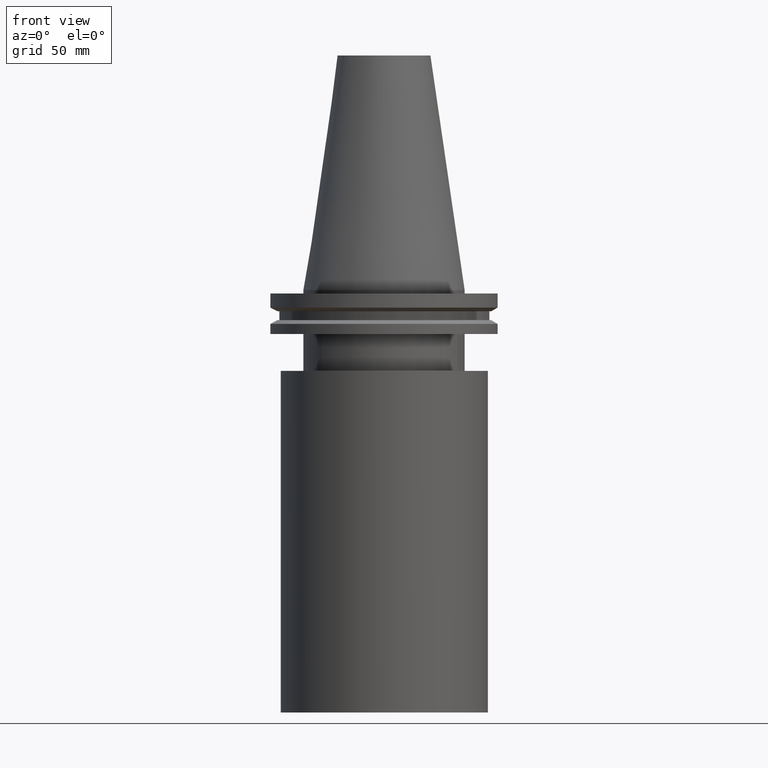
[diagram: clean part render]
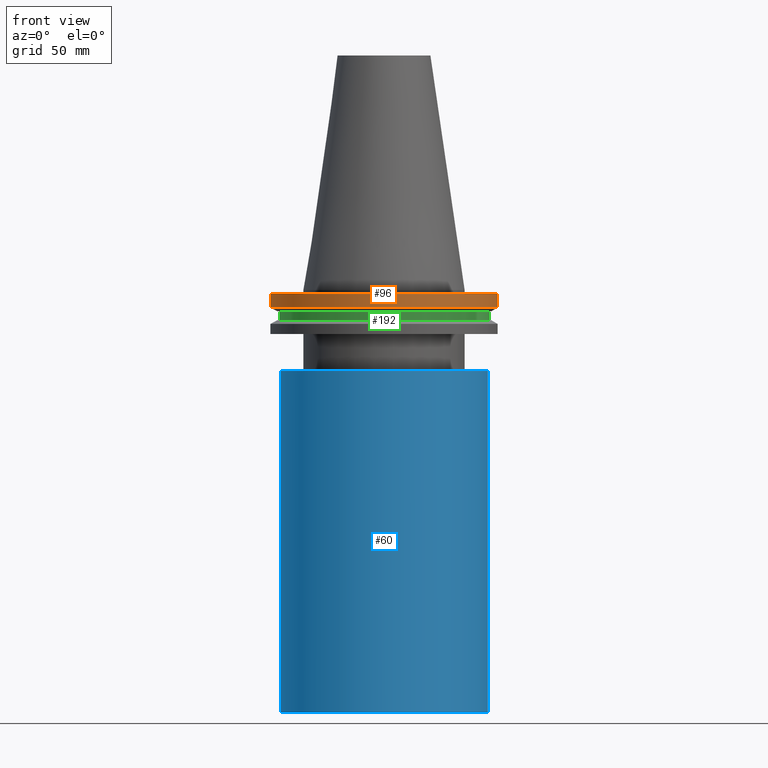
[diagram: same view with three faces highlighted in distinct colors, each labeled with its STEP entity id]
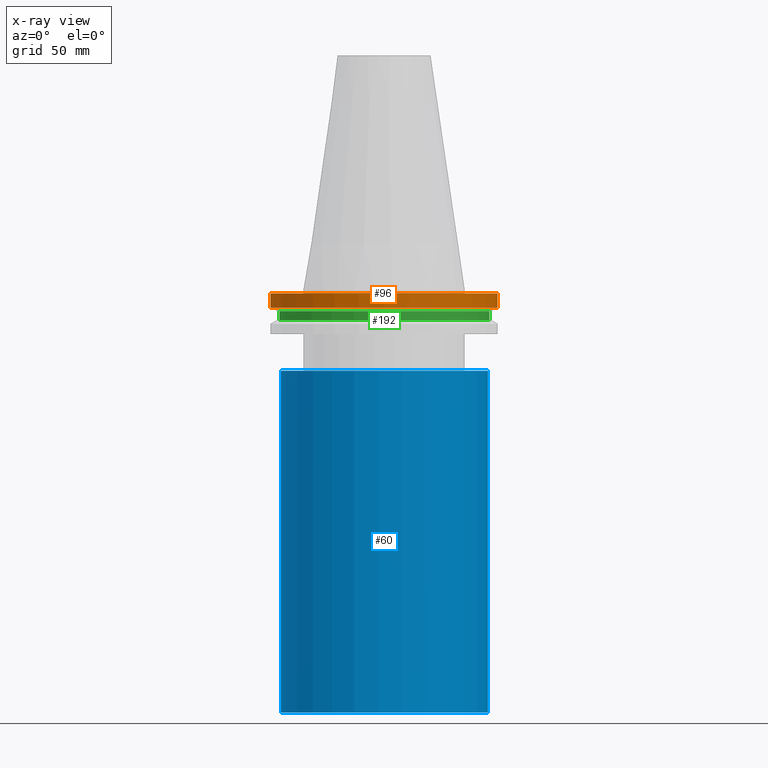
[diagram: x-ray of the same camera — body ghosted, the three highlighted faces saturated]
A machine part, front view with three faces highlighted in distinct colors.
The next image is the same camera in x-ray (body ghosted, the three faces saturated) — at least one of them is partly hidden behind the body in this view.
Their STEP definitions:

[orange] entity #96 — the highlighted cylindrical surface (bore or boss wall) has radius 49.215 mm, axis along (-0, -0, 1).
#5 = EDGE_LOOP ( 'NONE', ( #182 ) ) ;
#10 = FACE_OUTER_BOUND ( 'NONE', #5, .T. ) ;
#12 = DIRECTION ( 'NONE',  ( -0.000000000000000000, -0.000000000000000000, 1.000000000000000000 ) ) ;
#15 = FACE_OUTER_BOUND ( 'NONE', #353, .T. ) ;
#44 = CARTESIAN_POINT ( 'NONE',  ( 0.000000000000000000, 0.000000000000000000, 101.5999999999999943 ) ) ;
#45 = CIRCLE ( 'NONE', #107, 49.21500000000000341 ) ;
#46 = DIRECTION ( 'NONE',  ( -0.000000000000000000, -0.000000000000000000, 1.000000000000000000 ) ) ;
#58 = CARTESIAN_POINT ( 'NONE',  ( 0.000000000000000000, 0.000000000000000000, -1.499999999999987566 ) ) ;
#75 = CARTESIAN_POINT ( 'NONE',  ( 0.000000000000000000, 0.000000000000000000, -7.602389855251287187 ) ) ;
#82 = CIRCLE ( 'NONE', #372, 49.21499999999999631 ) ;
#96 = ADVANCED_FACE ( 'NONE', ( #15, #10 ), #136, .T. ) ;
#101 = VERTEX_POINT ( 'NONE', #367 ) ;
#107 = AXIS2_PLACEMENT_3D ( 'NONE', #75, #153, #151 ) ;
#120 = ORIENTED_EDGE ( 'NONE', *, *, #304, .F. ) ;
#135 = DIRECTION ( 'NONE',  ( 1.000000000000000000, 0.000000000000000000, 0.000000000000000000 ) ) ;
#136 = CYLINDRICAL_SURFACE ( 'NONE', #329, 49.21499999999999631 ) ;
#142 = DIRECTION ( 'NONE',  ( 1.000000000000000000, 0.000000000000000000, 0.000000000000000000 ) ) ;
#151 = DIRECTION ( 'NONE',  ( 1.000000000000000000, 0.000000000000000000, 0.000000000000000000 ) ) ;
#153 = DIRECTION ( 'NONE',  ( -0.000000000000000000, -0.000000000000000000, 1.000000000000000000 ) ) ;
#182 = ORIENTED_EDGE ( 'NONE', *, *, #240, .T. ) ;
#210 = CARTESIAN_POINT ( 'NONE',  ( 49.21499999999999631, 0.000000000000000000, -1.499999999999987566 ) ) ;
#240 = EDGE_CURVE ( 'NONE', #101, #101, #45, .T. ) ;
#304 = EDGE_CURVE ( 'NONE', #306, #306, #82, .T. ) ;
#306 = VERTEX_POINT ( 'NONE', #210 ) ;
#329 = AXIS2_PLACEMENT_3D ( 'NONE', #44, #12, #135 ) ;
#353 = EDGE_LOOP ( 'NONE', ( #120 ) ) ;
#367 = CARTESIAN_POINT ( 'NONE',  ( 49.21500000000000341, 0.000000000000000000, -7.602389855251287187 ) ) ;
#372 = AXIS2_PLACEMENT_3D ( 'NONE', #58, #46, #142 ) ;

[blue] entity #60 — the highlighted cylindrical surface (bore or boss wall) has radius 45 mm, axis along (-0, -0, 1).
#9 = CYLINDRICAL_SURFACE ( 'NONE', #379, 45.00000000000000000 ) ;
#14 = CIRCLE ( 'NONE', #388, 45.00000000000000000 ) ;
#31 = VERTEX_POINT ( 'NONE', #309 ) ;
#60 = ADVANCED_FACE ( 'NONE', ( #103, #161 ), #9, .T. ) ;
#69 = CIRCLE ( 'NONE', #289, 45.00000000000000000 ) ;
#87 = EDGE_CURVE ( 'NONE', #176, #176, #14, .T. ) ;
#103 = FACE_OUTER_BOUND ( 'NONE', #332, .T. ) ;
#108 = CARTESIAN_POINT ( 'NONE',  ( 0.000000000000000000, 0.000000000000000000, -35.00000000000000000 ) ) ;
#130 = DIRECTION ( 'NONE',  ( -0.000000000000000000, -0.000000000000000000, 1.000000000000000000 ) ) ;
#146 = EDGE_CURVE ( 'NONE', #31, #31, #69, .T. ) ;
#161 = FACE_OUTER_BOUND ( 'NONE', #325, .T. ) ;
#176 = VERTEX_POINT ( 'NONE', #321 ) ;
#197 = DIRECTION ( 'NONE',  ( 1.000000000000000000, 0.000000000000000000, 0.000000000000000000 ) ) ;
#238 = ORIENTED_EDGE ( 'NONE', *, *, #87, .T. ) ;
#253 = CARTESIAN_POINT ( 'NONE',  ( 0.000000000000000000, 0.000000000000000000, -183.0000000000000000 ) ) ;
#254 = CARTESIAN_POINT ( 'NONE',  ( 0.000000000000000000, 0.000000000000000000, 0.000000000000000000 ) ) ;
#255 = DIRECTION ( 'NONE',  ( -0.000000000000000000, -0.000000000000000000, 1.000000000000000000 ) ) ;
#289 = AXIS2_PLACEMENT_3D ( 'NONE', #108, #255, #312 ) ;
#309 = CARTESIAN_POINT ( 'NONE',  ( 45.00000000000000000, 0.000000000000000000, -35.00000000000000000 ) ) ;
#310 = DIRECTION ( 'NONE',  ( -0.000000000000000000, -0.000000000000000000, 1.000000000000000000 ) ) ;
#312 = DIRECTION ( 'NONE',  ( 1.000000000000000000, 0.000000000000000000, 0.000000000000000000 ) ) ;
#321 = CARTESIAN_POINT ( 'NONE',  ( 45.00000000000000000, 0.000000000000000000, -183.0000000000000000 ) ) ;
#325 = EDGE_LOOP ( 'NONE', ( #238 ) ) ;
#332 = EDGE_LOOP ( 'NONE', ( #364 ) ) ;
#364 = ORIENTED_EDGE ( 'NONE', *, *, #146, .F. ) ;
#379 = AXIS2_PLACEMENT_3D ( 'NONE', #254, #310, #382 ) ;
#382 = DIRECTION ( 'NONE',  ( 1.000000000000000000, 0.000000000000000000, 0.000000000000000000 ) ) ;
#388 = AXIS2_PLACEMENT_3D ( 'NONE', #253, #130, #197 ) ;

[green] entity #192 — the highlighted cylindrical surface (bore or boss wall) has radius 45.645 mm, axis along (-0, -0, 1).
#6 = CARTESIAN_POINT ( 'NONE',  ( 45.64500000000000313, 0.000000000000000000, -13.05499999999999794 ) ) ;
#13 = CARTESIAN_POINT ( 'NONE',  ( 0.000000000000000000, 0.000000000000000000, 101.5999999999999943 ) ) ;
#32 = AXIS2_PLACEMENT_3D ( 'NONE', #292, #92, #395 ) ;
#39 = DIRECTION ( 'NONE',  ( 1.000000000000000000, 0.000000000000000000, 0.000000000000000000 ) ) ;
#92 = DIRECTION ( 'NONE',  ( -0.000000000000000000, -0.000000000000000000, 1.000000000000000000 ) ) ;
#109 = EDGE_CURVE ( 'NONE', #351, #351, #208, .T. ) ;
#143 = AXIS2_PLACEMENT_3D ( 'NONE', #13, #308, #39 ) ;
#144 = ORIENTED_EDGE ( 'NONE', *, *, #257, .T. ) ;
#170 = CARTESIAN_POINT ( 'NONE',  ( 45.64500000000000313, 0.000000000000000000, -9.204999999999991189 ) ) ;
#188 = FACE_OUTER_BOUND ( 'NONE', #305, .T. ) ;
#192 = ADVANCED_FACE ( 'NONE', ( #373, #188 ), #346, .T. ) ;
#203 = AXIS2_PLACEMENT_3D ( 'NONE', #222, #286, #219 ) ;
#208 = CIRCLE ( 'NONE', #203, 45.64500000000000313 ) ;
#219 = DIRECTION ( 'NONE',  ( 1.000000000000000000, 0.000000000000000000, 0.000000000000000000 ) ) ;
#222 = CARTESIAN_POINT ( 'NONE',  ( 0.000000000000000000, 0.000000000000000000, -9.204999999999991189 ) ) ;
#245 = VERTEX_POINT ( 'NONE', #6 ) ;
#257 = EDGE_CURVE ( 'NONE', #245, #245, #265, .T. ) ;
#265 = CIRCLE ( 'NONE', #32, 45.64500000000000313 ) ;
#267 = EDGE_LOOP ( 'NONE', ( #274 ) ) ;
#274 = ORIENTED_EDGE ( 'NONE', *, *, #109, .F. ) ;
#286 = DIRECTION ( 'NONE',  ( -0.000000000000000000, -0.000000000000000000, 1.000000000000000000 ) ) ;
#292 = CARTESIAN_POINT ( 'NONE',  ( 0.000000000000000000, 0.000000000000000000, -13.05499999999999794 ) ) ;
#305 = EDGE_LOOP ( 'NONE', ( #144 ) ) ;
#308 = DIRECTION ( 'NONE',  ( -0.000000000000000000, -0.000000000000000000, 1.000000000000000000 ) ) ;
#346 = CYLINDRICAL_SURFACE ( 'NONE', #143, 45.64500000000000313 ) ;
#351 = VERTEX_POINT ( 'NONE', #170 ) ;
#373 = FACE_OUTER_BOUND ( 'NONE', #267, .T. ) ;
#395 = DIRECTION ( 'NONE',  ( 1.000000000000000000, 0.000000000000000000, 0.000000000000000000 ) ) ;